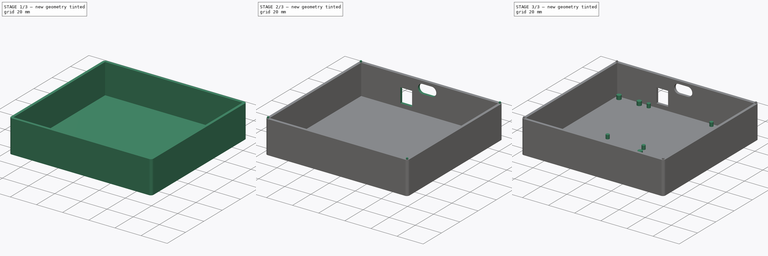
[diagram: build sequence overview — one tinted view per stage of 3, left to right]
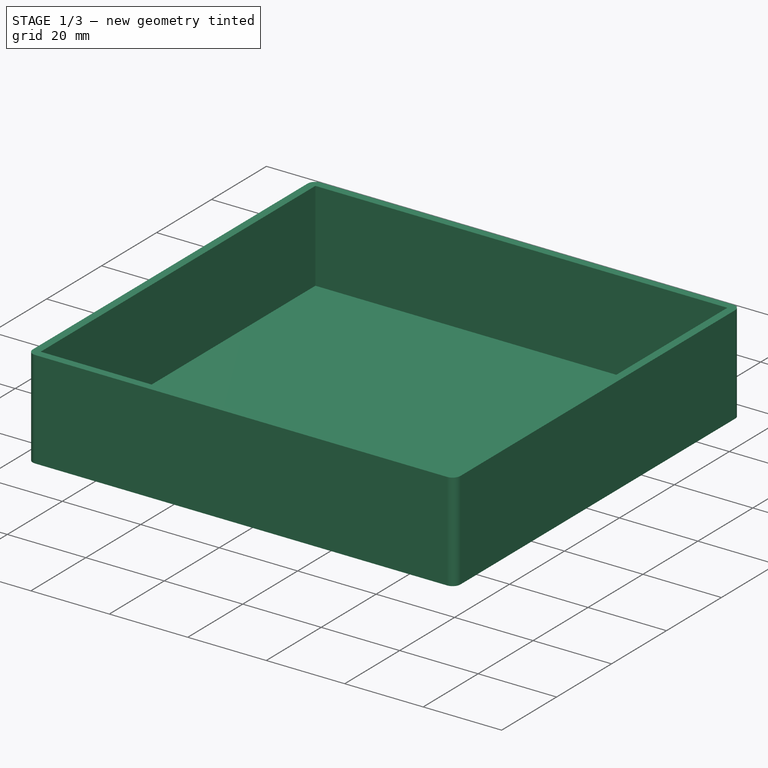
[diagram: stage 1 of 3 — iso view after this stage's code; geometry added in this stage tinted green]
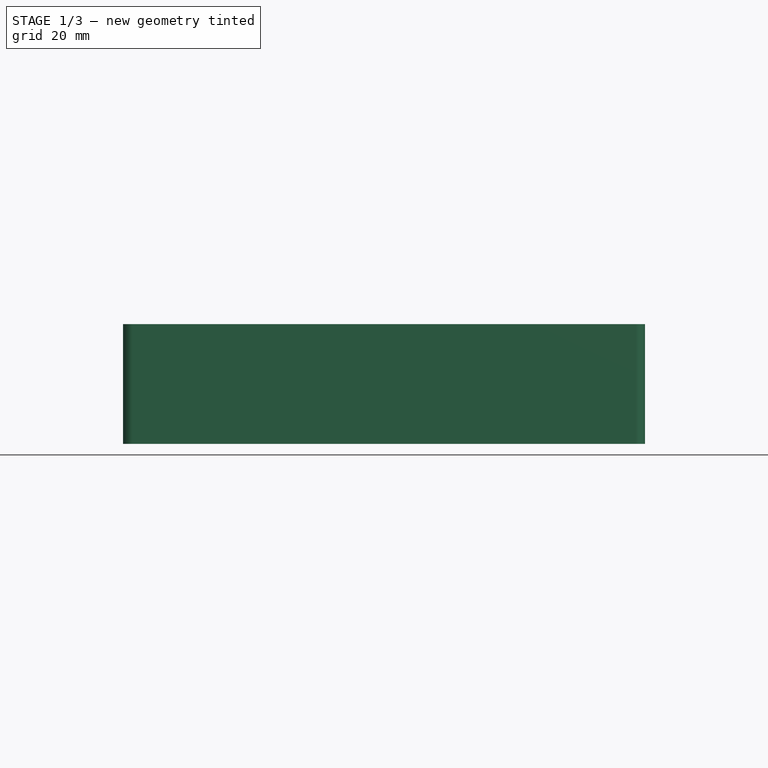
[diagram: stage 1 of 3 — front view after this stage's code; geometry added in this stage tinted green]
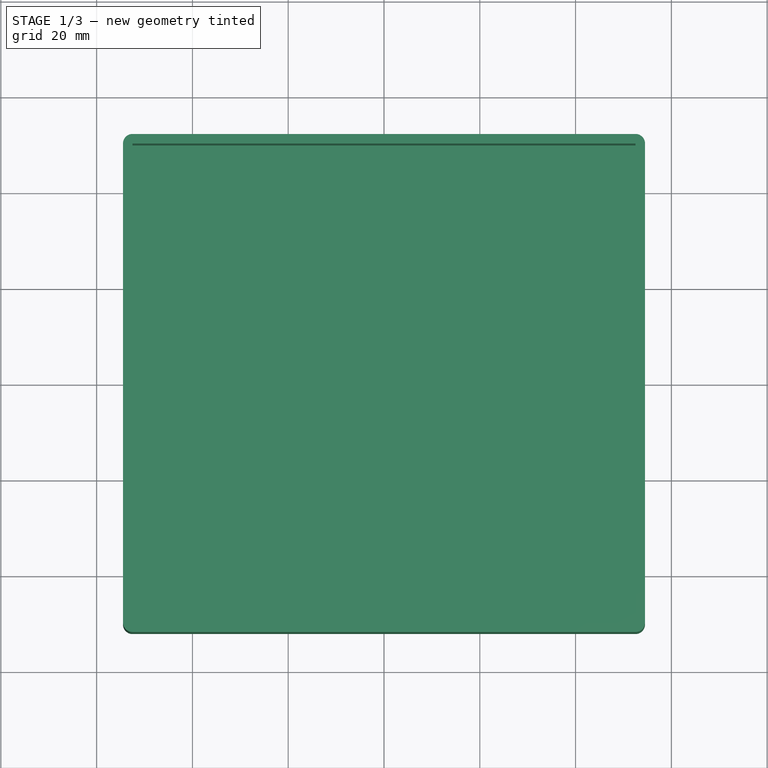
[diagram: stage 1 of 3 — top view after this stage's code; geometry added in this stage tinted green]
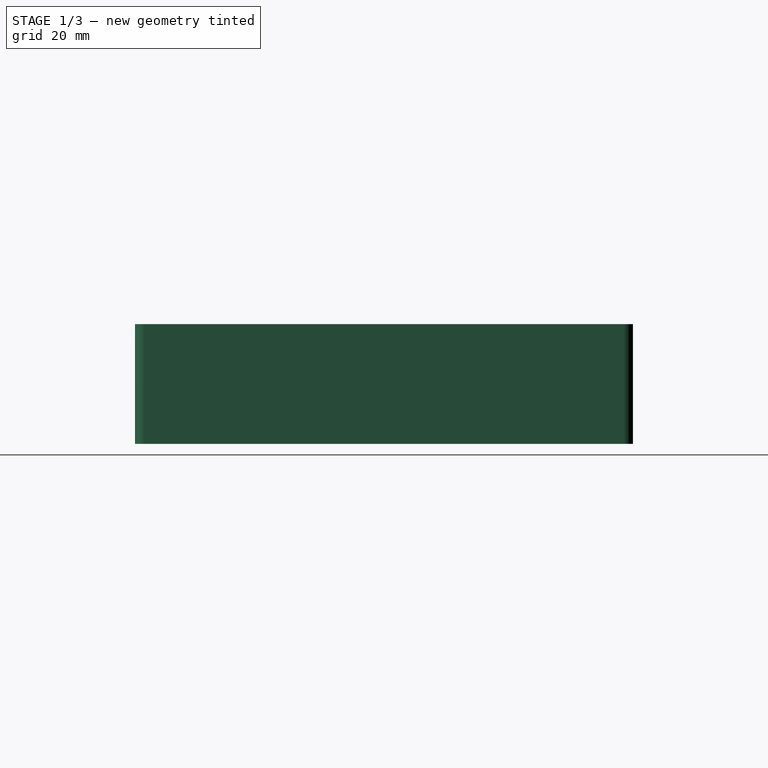
[diagram: stage 1 of 3 — right view after this stage's code; geometry added in this stage tinted green]
FCSTD DOCUMENT  (FreeCAD 2024.1R35694 (Git))
Label: controller
License: All rights reserved
LicenseURL: https://en.wikipedia.org/wiki/All_rights_reserved
objects: App::MeasureDistance×9, Sketcher::SketchObject×7, PartDesign::Pad×5, PartDesign::Pocket×2, PartDesign::Body×1, App::Part×1
note: 22 computed .brp shape members not serialized (recipe doc carries the construction recipe); baked Part::Feature solids carry a one-line shape summary decoded from their .brp

FEATURE [Sketcher::SketchObject] Sketch
  FullyConstrained = true
  MapMode = 5
  Support = -> [XY_Plane001]
  sketch-geometry (14):
    g0: LineSegment StartX=-54.5 StartY=50 StartZ=0 EndX=-54.5 EndY=-50 EndZ=0
    g1: LineSegment StartX=-52.5 StartY=-52 StartZ=0 EndX=52.5 EndY=-52 EndZ=0
    g2: LineSegment StartX=54.5 StartY=-50 StartZ=0 EndX=54.5 EndY=50 EndZ=0
    g3: LineSegment StartX=52.5 StartY=52 StartZ=0 EndX=-52.5 EndY=52 EndZ=0
    g4: ArcOfCircle CenterX=-52.5 CenterY=50 CenterZ=0 NormalX=0 NormalY=0 NormalZ=1 AngleXU=0 Radius=2 StartAngle=1.5708 EndAngle=3.14159
    g5: ArcOfCircle CenterX=-52.5 CenterY=-50 CenterZ=0 NormalX=0 NormalY=0 NormalZ=1 AngleXU=0 Radius=2 StartAngle=3.14159 EndAngle=4.71239
    g6: ArcOfCircle CenterX=52.5 CenterY=-50 CenterZ=0 NormalX=0 NormalY=0 NormalZ=1 AngleXU=0 Radius=2 StartAngle=4.71239 EndAngle=6.28319
    g7: ArcOfCircle CenterX=52.5 CenterY=50 CenterZ=0 NormalX=0 NormalY=0 NormalZ=1 AngleXU=0 Radius=2 StartAngle=9e-16 EndAngle=1.5708
    g8: GeomPoint X=-54.5 Y=52 Z=0
    g9: GeomPoint X=54.5 Y=-52 Z=0
    g10: LineSegment StartX=-52.5 StartY=50 StartZ=0 EndX=-52.5 EndY=-50 EndZ=0
    g11: LineSegment StartX=-52.5 StartY=-50 StartZ=0 EndX=52.5 EndY=-50 EndZ=0
    g12: LineSegment StartX=52.5 StartY=-50 StartZ=0 EndX=52.5 EndY=50 EndZ=0
    g13: LineSegment StartX=52.5 StartY=50 StartZ=0 EndX=-52.5 EndY=50 EndZ=0
  constraints (34):
    c: Tangent(g0,g4) = -1.5708
    c: Tangent(g0,g5) = -1.5708
    c: Tangent(g1,g5) = -1.5708
    c: Tangent(g1,g6) = -1.5708
    c: Tangent(g2,g6) = -1.5708
    c: Tangent(g2,g7) = -1.5708
    c: Tangent(g3,g7) = -1.5708
    c: Tangent(g3,g4) = -1.5708
    c: Vertical(g0)
    c: Vertical(g2)
    c: Horizontal(g1)
    c: Horizontal(g3)
    c: Equal(g4,g5)
    c: Equal(g5,g6)
    c: Equal(g6,g7)
    c: PointOnObject(g8,g0)
    c: PointOnObject(g8,g3)
    c: PointOnObject(g9,g1)
    c: PointOnObject(g9,g2)
    c: Distance(g0,g2) = 109
    c: Distance(g1,g3) = 104
    c: Radius(g5) = 2
    c: Symmetric(g8,g9,g-1)
    c: Coincident(g10,g11)
    c: Coincident(g11,g12)
    c: Coincident(g12,g13)
    c: Coincident(g13,g10)
    c: Vertical(g10)
    c: Vertical(g12)
    c: Horizontal(g11)
    c: Horizontal(g13)
    c: Distance(g10,g12) = 105
    c: Distance(g11,g13) = 100
    c: Symmetric(g10,g11,g-1)
FEATURE [Sketcher::SketchObject] Sketch001
  FullyConstrained = true
  MapMode = 5
  Support = -> [XY_Plane001]
  sketch-geometry (10):
    g0: LineSegment StartX=-54.5 StartY=47 StartZ=0 EndX=-54.5 EndY=-47 EndZ=0
    g1: LineSegment StartX=-49.5 StartY=-52 StartZ=0 EndX=49.5 EndY=-52 EndZ=0
    g2: LineSegment StartX=54.5 StartY=-47 StartZ=0 EndX=54.5 EndY=47 EndZ=0
    g3: LineSegment StartX=49.5 StartY=52 StartZ=0 EndX=-49.5 EndY=52 EndZ=0
    g4: ArcOfCircle CenterX=-49.5 CenterY=47 CenterZ=0 NormalX=0 NormalY=0 NormalZ=1 AngleXU=0 Radius=5 StartAngle=1.5708 EndAngle=3.14159
    g5: ArcOfCircle CenterX=-49.5 CenterY=-47 CenterZ=0 NormalX=0 NormalY=0 NormalZ=1 AngleXU=0 Radius=5 StartAngle=3.14159 EndAngle=4.71239
    g6: ArcOfCircle CenterX=49.5 CenterY=-47 CenterZ=0 NormalX=0 NormalY=0 NormalZ=1 AngleXU=0 Radius=5 StartAngle=4.71239 EndAngle=6.28319
    g7: ArcOfCircle CenterX=49.5 CenterY=47 CenterZ=0 NormalX=0 NormalY=0 NormalZ=1 AngleXU=0 Radius=5 StartAngle=-4.4e-15 EndAngle=1.5708
    g8: GeomPoint X=-54.5 Y=52 Z=0
    g9: GeomPoint X=54.5 Y=-52 Z=0
  constraints (23):
    c: Tangent(g0,g4) = -1.5708
    c: Tangent(g0,g5) = -1.5708
    c: Tangent(g1,g5) = -1.5708
    c: Tangent(g1,g6) = -1.5708
    c: Tangent(g2,g6) = -1.5708
    c: Tangent(g2,g7) = -1.5708
    c: Tangent(g3,g7) = -1.5708
    c: Tangent(g3,g4) = -1.5708
    c: Vertical(g0)
    c: Vertical(g2)
    c: Horizontal(g1)
    c: Horizontal(g3)
    c: Equal(g4,g5)
    c: Equal(g5,g6)
    c: Equal(g6,g7)
    c: PointOnObject(g8,g0)
    c: PointOnObject(g8,g3)
    c: PointOnObject(g9,g1)
    c: PointOnObject(g9,g2)
    c: Distance(g0,g2) = 109
    c: Distance(g1,g3) = 104
    c: Radius(g5) = 5
    c: Symmetric(g8,g9,g-1)
FEATURE [PartDesign::Pad] Pad
  Direction = (0,0,1)
  Length = 25
  Length2 = 10
  Profile = -> Sketch
  ReferenceAxis = -> Sketch [N_Axis]
  Refine = true
  Type = 0
FEATURE [PartDesign::Pad] Pad001
  BaseFeature = -> Pad
  Direction = (0,0,1)
  Length = 2
  Length2 = 10
  Profile = -> Sketch001
  ReferenceAxis = -> Sketch001 [N_Axis]
  Refine = true
  Type = 0
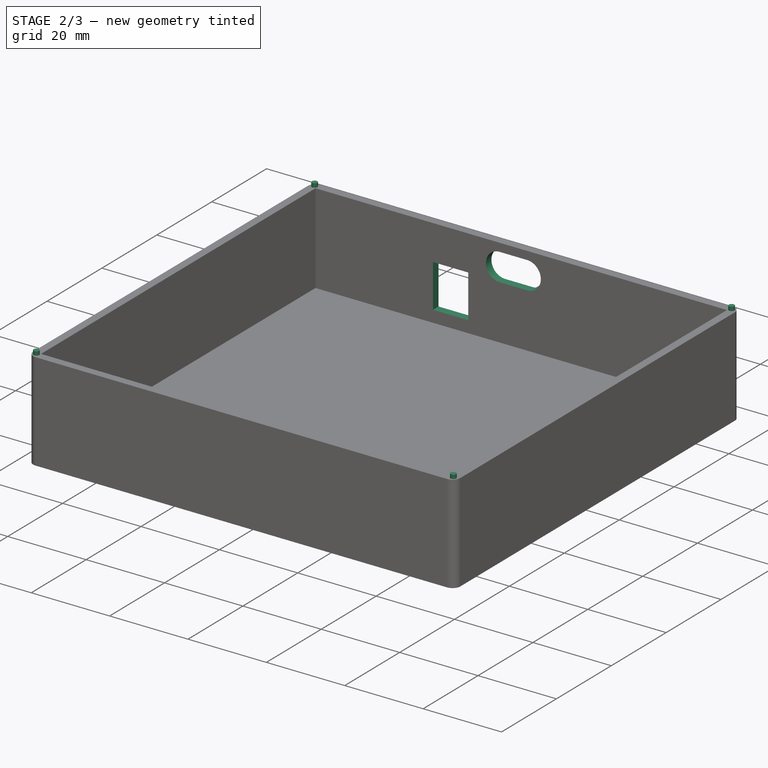
[diagram: stage 2 of 3 — iso view after this stage's code; geometry added in this stage tinted green]
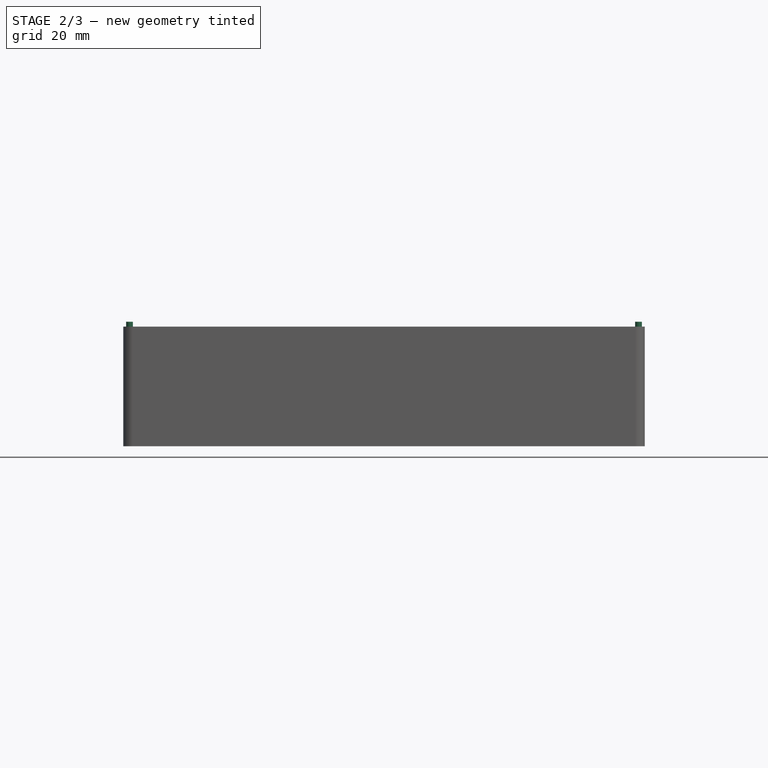
[diagram: stage 2 of 3 — front view after this stage's code; geometry added in this stage tinted green]
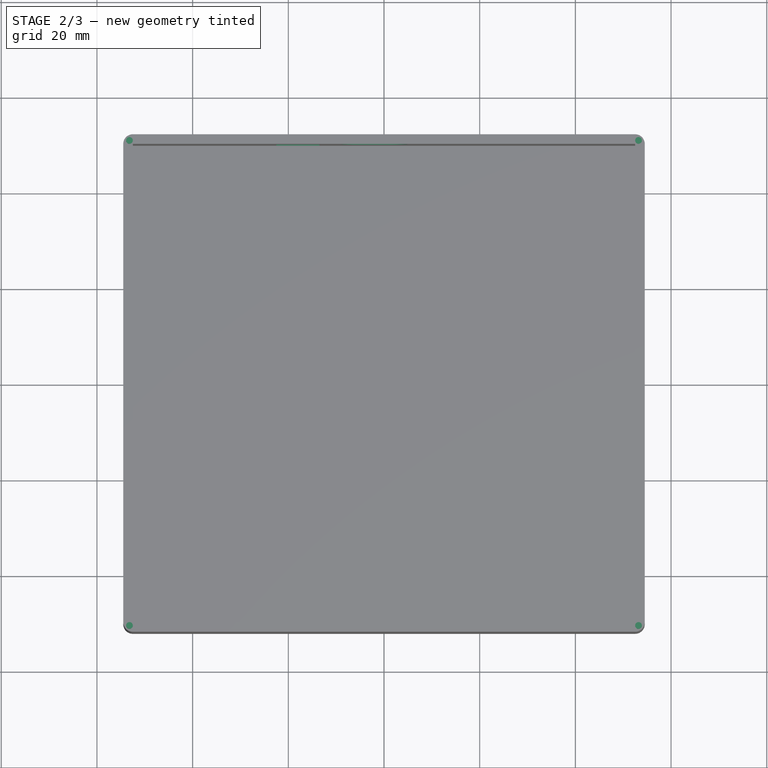
[diagram: stage 2 of 3 — top view after this stage's code; geometry added in this stage tinted green]
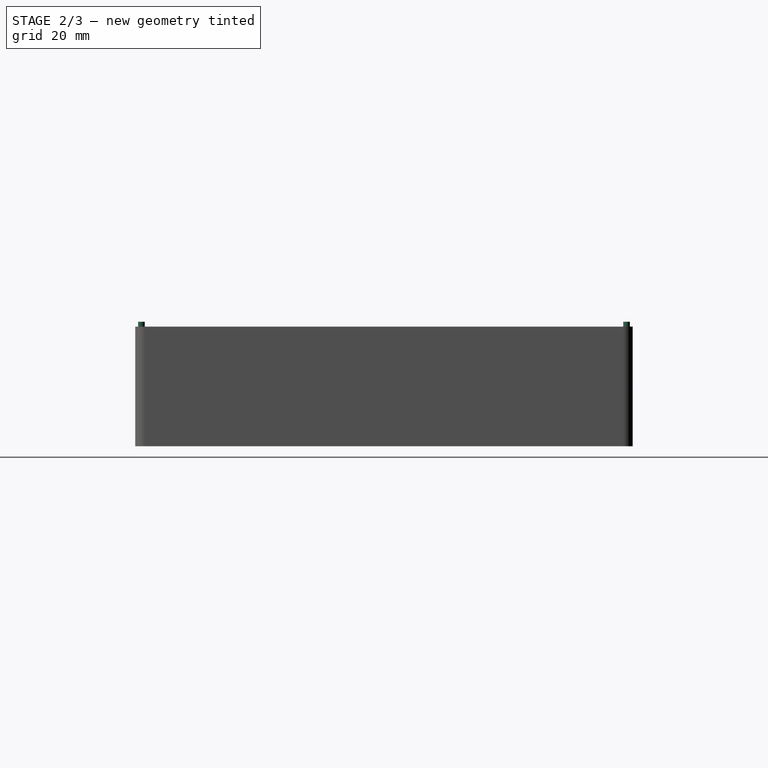
[diagram: stage 2 of 3 — right view after this stage's code; geometry added in this stage tinted green]
FEATURE [Sketcher::SketchObject] Sketch003
  FullyConstrained = true
  MapMode = 5
  Placement = pos=(0,52,0) rot=(0,0.707107,0.707107;3.14159rad)
  Support = -> [Pad001]
  sketch-geometry (5):
    g0: LineSegment StartX=22.5002 StartY=5 StartZ=0 EndX=22.5002 EndY=16 EndZ=0
    g1: LineSegment StartX=22.5002 StartY=16 StartZ=0 EndX=13.5002 EndY=16 EndZ=0
    g2: LineSegment StartX=13.5002 StartY=16 StartZ=0 EndX=13.5002 EndY=5 EndZ=0
    g3: LineSegment StartX=13.5002 StartY=5 StartZ=0 EndX=22.5002 EndY=5 EndZ=0
    g4: GeomPoint X=52.5002 Y=0 Z=0
  constraints (14):
    c: Coincident(g0,g1)
    c: Coincident(g1,g2)
    c: Coincident(g2,g3)
    c: Coincident(g3,g0)
    c: Vertical(g0)
    c: Vertical(g2)
    c: Horizontal(g1)
    c: Horizontal(g3)
    c: Distance(g0,g2) = 9
    c: Distance(g1,g3) = 11
    c: PointOnObject(g4,g-1)
    c: DistanceX(g0,g4) = 30
    c: DistanceY(g4,g0) = 5
    c: Block(g0)
FEATURE [PartDesign::Pocket] Pocket
  BaseFeature = -> Pad001
  Direction = (0,-1,2e-16)
  Length = 5
  Length2 = 5
  Profile = -> Sketch003
  ReferenceAxis = -> Sketch003 [N_Axis]
  Refine = true
  Type = 0
FEATURE [Sketcher::SketchObject] Sketch004
  FullyConstrained = true
  MapMode = 5
  Placement = pos=(0,52,0) rot=(0,0.707107,0.707107;3.14159rad)
  Support = -> [Pocket]
  sketch-geometry (5):
    g0: GeomPoint X=13.5 Y=16 Z=0
    g1: ArcOfCircle CenterX=5.5 CenterY=19.4 CenterZ=0 NormalX=0 NormalY=0 NormalZ=1 AngleXU=0 Radius=3.5 StartAngle=4.71239 EndAngle=7.85398
    g2: ArcOfCircle CenterX=-1.5 CenterY=19.4 CenterZ=0 NormalX=0 NormalY=0 NormalZ=1 AngleXU=0 Radius=3.5 StartAngle=1.5708 EndAngle=4.71239
    g3: LineSegment StartX=5.5 StartY=15.9 StartZ=0 EndX=-1.5 EndY=15.9 EndZ=0
    g4: LineSegment StartX=5.5 StartY=22.9 StartZ=0 EndX=-1.5 EndY=22.9 EndZ=0
  constraints (11):
    c: Tangent(g1,g3) = 1.5708
    c: Tangent(g1,g4) = -1.5708
    c: Tangent(g2,g3) = 1.5708
    c: Tangent(g2,g4) = -1.5708
    c: Equal(g1,g2)
    c: Horizontal(g4)
    c: Distance(g1,g2) = 7
    c: Radius(g1) = 3.5
    c: DistanceY(g0,g1) = -0.1
    c: DistanceX(g1,g0) = 8
    c: Block(g3)
FEATURE [PartDesign::Pocket] Pocket001
  BaseFeature = -> Pocket
  Direction = (0,-1,2e-16)
  Length = 2
  Length2 = 5
  Profile = -> Sketch004
  ReferenceAxis = -> Sketch004 [N_Axis]
  Refine = true
  Type = 0
FEATURE [App::MeasureDistance] Distance001  label="Distance: 30,025 mm"
  Distance = 30.0247
  P1 = (-22.5002,52,10.0437)
  P2 = (-52.5,52,8.82033)
FEATURE [Sketcher::SketchObject] Sketch006
  FullyConstrained = true
  MapMode = 5
  Placement = pos=(0,0,2) rot=(0,0,1;0rad)
  Support = -> [Pocket001]
FEATURE [Sketcher::SketchObject] Sketch005
  FullyConstrained = true
  MapMode = 5
  Placement = pos=(0,0,2) rot=(0,0,1;0rad)
  Support = -> [Pocket001]
  sketch-geometry (12):
    g0: Circle CenterX=-26.5 CenterY=47.4 CenterZ=0 NormalX=0 NormalY=0 NormalZ=1 AngleXU=0 Radius=1.3
    g1: Circle CenterX=-33.5 CenterY=47 CenterZ=0 NormalX=0 NormalY=0 NormalZ=1 AngleXU=0 Radius=1.65
    g2: Circle CenterX=-49 CenterY=47 CenterZ=0 NormalX=0 NormalY=0 NormalZ=1 AngleXU=0 Radius=1.65
    g3: Circle CenterX=-49 CenterY=-38 CenterZ=0 NormalX=0 NormalY=0 NormalZ=1 AngleXU=0 Radius=1.65
    g4: Circle CenterX=-33.5 CenterY=-38 CenterZ=0 NormalX=0 NormalY=0 NormalZ=1 AngleXU=0 Radius=1.65
    g5: Circle CenterX=21.5 CenterY=47.4 CenterZ=0 NormalX=0 NormalY=0 NormalZ=1 AngleXU=0 Radius=1.3
    g6: Circle CenterX=-21.2 CenterY=-5.1 CenterZ=0 NormalX=0 NormalY=0 NormalZ=1 AngleXU=0 Radius=1.3
    g7: Circle CenterX=6.3 CenterY=-5.1 CenterZ=0 NormalX=0 NormalY=0 NormalZ=1 AngleXU=0 Radius=1.3
    g8: Circle CenterX=9.3 CenterY=-13.1 CenterZ=0 NormalX=0 NormalY=0 NormalZ=1 AngleXU=0 Radius=1.65
    g9: Circle CenterX=35.8 CenterY=-13.1 CenterZ=0 NormalX=0 NormalY=0 NormalZ=1 AngleXU=0 Radius=1.65
    g10: Circle CenterX=9.3 CenterY=-33.1 CenterZ=0 NormalX=0 NormalY=0 NormalZ=1 AngleXU=0 Radius=1.65
    g11: Circle CenterX=35.8 CenterY=-33.1 CenterZ=0 NormalX=0 NormalY=0 NormalZ=1 AngleXU=0 Radius=1.65
  constraints (35):
    c: Radius(g0) = 1.3
    c: Radius(g1) = 1.65
    c: DistanceX(g1,g0) = 7
    c: DistanceY(g1,g0) = 0.4
    c: Radius(g2) = 1.65
    c: DistanceY(g2,g1) = 0
    c: DistanceX(g2,g1) = 15.5
    c: Block(g0)
    c: Radius(g3) = 1.65
    c: Radius(g4) = 1.65
    c: DistanceX(g3,g4) = 15.5
    c: DistanceY(g3,g2) = 85
    c: DistanceX(g2,g3) = 0
    c: DistanceY(g3,g4) = 0
    c: Radius(g5) = 1.3
    c: DistanceX(g0,g5) = 48
    c: DistanceY(g0,g5) = 0
    c: Radius(g6) = 1.3
    c: Radius(g7) = 1.3
    c: DistanceY(g6,g0) = 52.5
    c: DistanceX(g0,g6) = 5.3
    c: DistanceX(g6,g7) = 27.5
    c: DistanceY(g7,g6) = 0
    c: Radius(g8) = 1.65
    c: Radius(g9) = 1.65
    c: Radius(g10) = 1.65
    c: Radius(g11) = 1.65
    c: DistanceX(g8,g7) = -3
    c: DistanceY(g8,g7) = 8
    c: DistanceY(g10,g8) = 20
    c: DistanceX(g10,g8) = 0
    c: DistanceX(g8,g9) = 26.5
    c: DistanceY(g9,g8) = 0
    c: DistanceY(g11,g9) = 20
    c: DistanceX(g9,g11) = 0
FEATURE [App::MeasureDistance] Distance  label="Distance: 25,141 mm"
  Distance = 25.1414
  P1 = (26.0046,52,25)
  P2 = (28.777,52,0.0119046)
FEATURE [App::MeasureDistance] Distance002  label="Distance: 0,600 mm"
  Distance = 0.600068
  P1 = (-1.35408,50,24.4)
  P2 = (-1.34506,50,25)
FEATURE [Sketcher::SketchObject] Sketch007
  FullyConstrained = true
  MapMode = 5
  Placement = pos=(0,0,25) rot=(0,0,1;0rad)
  sketch-geometry (8):
    g0: Circle CenterX=53.2 CenterY=50.7 CenterZ=0 NormalX=0 NormalY=0 NormalZ=1 AngleXU=0 Radius=0.7
    g1: GeomPoint X=52.5 Y=50 Z=0
    g2: GeomPoint X=-52.5 Y=50 Z=0
    g3: GeomPoint X=-52.5 Y=-50 Z=0
    g4: GeomPoint X=52.5 Y=-50 Z=0
    g5: Circle CenterX=-53.2 CenterY=50.7 CenterZ=0 NormalX=0 NormalY=0 NormalZ=1 AngleXU=0 Radius=0.7
    g6: Circle CenterX=-53.2 CenterY=-50.7 CenterZ=0 NormalX=0 NormalY=0 NormalZ=1 AngleXU=0 Radius=0.7
    g7: Circle CenterX=53.2 CenterY=-50.7 CenterZ=0 NormalX=0 NormalY=0 NormalZ=1 AngleXU=0 Radius=0.7
  constraints (16):
    c: Radius(g0) = 0.7
    c: DistanceY(g1,g0) = 0.7
    c: DistanceX(g1,g0) = 0.7
    c: Block(g0)
    c: Radius(g5) = 0.7
    c: DistanceX(g5,g2) = 0.7
    c: DistanceY(g2,g5) = 0.7
    c: Block(g5)
    c: Radius(g6) = 0.7
    c: DistanceX(g6,g3) = 0.7
    c: DistanceY(g6,g3) = 0.7
    c: Block(g6)
    c: Radius(g7) = 0.7
    c: DistanceY(g7,g4) = 0.7
    c: DistanceX(g4,g7) = 0.7
    c: Block(g7)
FEATURE [PartDesign::Pad] Pad006
  BaseFeature = -> Pocket001
  Direction = (0,0,1)
  Length = 1
  Length2 = 10
  Profile = -> Sketch007
  ReferenceAxis = -> Sketch007 [N_Axis]
  Refine = true
  Type = 0
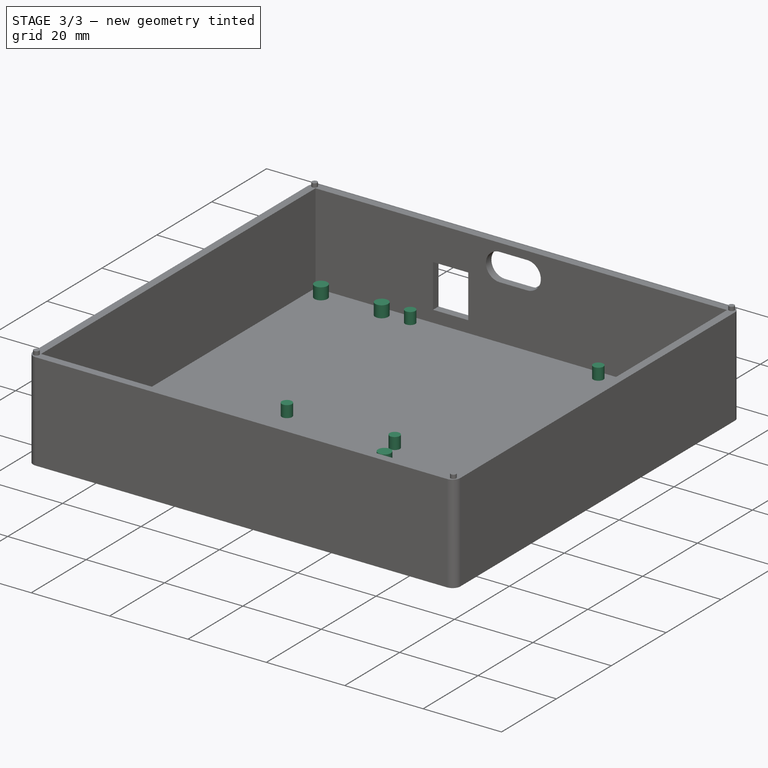
[diagram: stage 3 of 3 — iso view after this stage's code; geometry added in this stage tinted green]
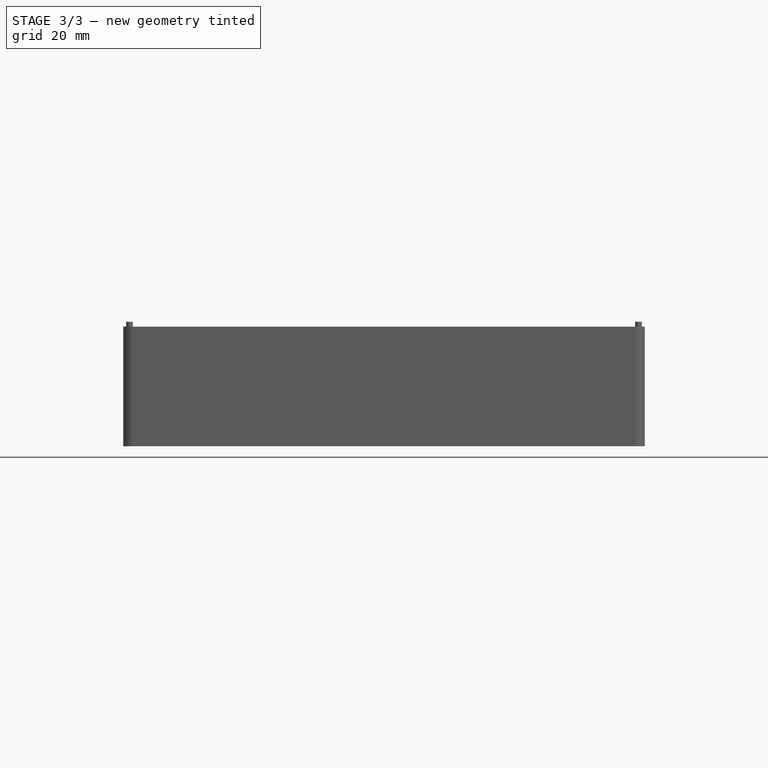
[diagram: stage 3 of 3 — front view after this stage's code; geometry added in this stage tinted green]
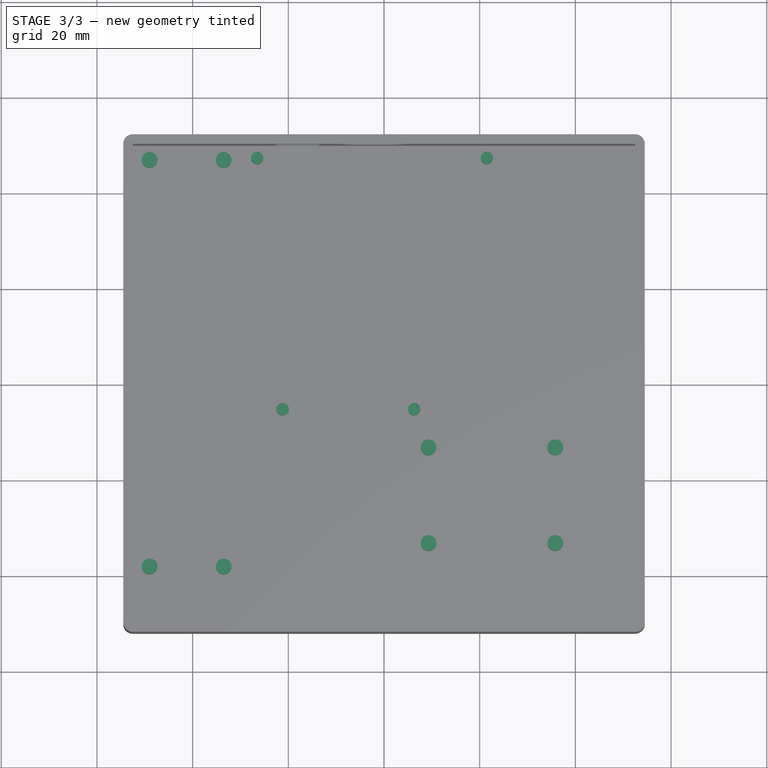
[diagram: stage 3 of 3 — top view after this stage's code; geometry added in this stage tinted green]
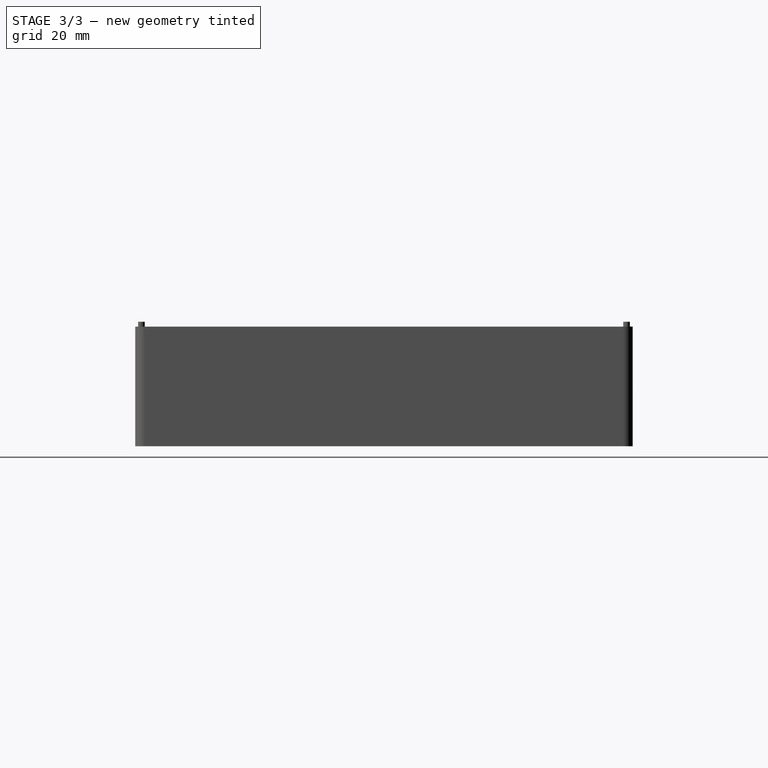
[diagram: stage 3 of 3 — right view after this stage's code; geometry added in this stage tinted green]
FEATURE [PartDesign::Pad] Pad007
  BaseFeature = -> Pad006
  Direction = (0,0,1)
  Length = 2
  Length2 = 10
  Profile = -> Sketch001
  ReferenceAxis = -> Sketch001 [N_Axis]
  Refine = true
  Type = 0
FEATURE [App::MeasureDistance] Distance003  label="Distance: 1,514 mm"
  Distance = 1.51358
  P1 = (-16.4302,50,6.5)
  P2 = (-16.6318,49.9838,5)
FEATURE [App::MeasureDistance] Distance004  label="Distance: 6,551 mm"
  Distance = 6.5513
  P1 = (-19.9227,52,6.5)
  P2 = (-20.7409,52,0)
FEATURE [PartDesign::Pad] Pad008
  BaseFeature = -> Pad007
  Direction = (0,0,1)
  Length = 3
  Length2 = 10
  Profile = -> Sketch005
  ReferenceAxis = -> Sketch005 [N_Axis]
  Refine = true
  Type = 0
FEATURE [PartDesign::Body] Body  label="Тело"
  Group = -> [Sketch,Sketch001,Pad,Pad001,Sketch003,Pocket,Sketch004,Pocket001,Sketch005,Sketch006,Sketch007,Pad006,Pad007,Pad008]
  Origin = -> Origin001
  Tip = -> Pad008
FEATURE [App::Part] Part
  Group = -> [Body]
  Origin = -> Origin
FEATURE [App::MeasureDistance] Distance005  label="Distance: 84,457 mm"
  Distance = 84.4573
  P1 = (-48.8048,46.4341,5)
  P2 = (-48.8084,-38.0233,5)
FEATURE [App::MeasureDistance] Distance006  label="Distance: 15,502 mm"
  Distance = 15.5017
  P1 = (-48.8679,47.168,5)
  P2 = (-33.3664,47.0896,5)
FEATURE [App::MeasureDistance] Distance007  label="Distance: 21,516 mm"
  Distance = 21.5164
  P1 = (9.15953,-13.1545,5)
  P2 = (30.6758,-13.2366,5)
FEATURE [App::MeasureDistance] Distance008  label="Distance: 20,404 mm"
  Distance = 20.404
  P1 = (9.24049,-12.8659,5)
  P2 = (9.3969,-33.2694,5)
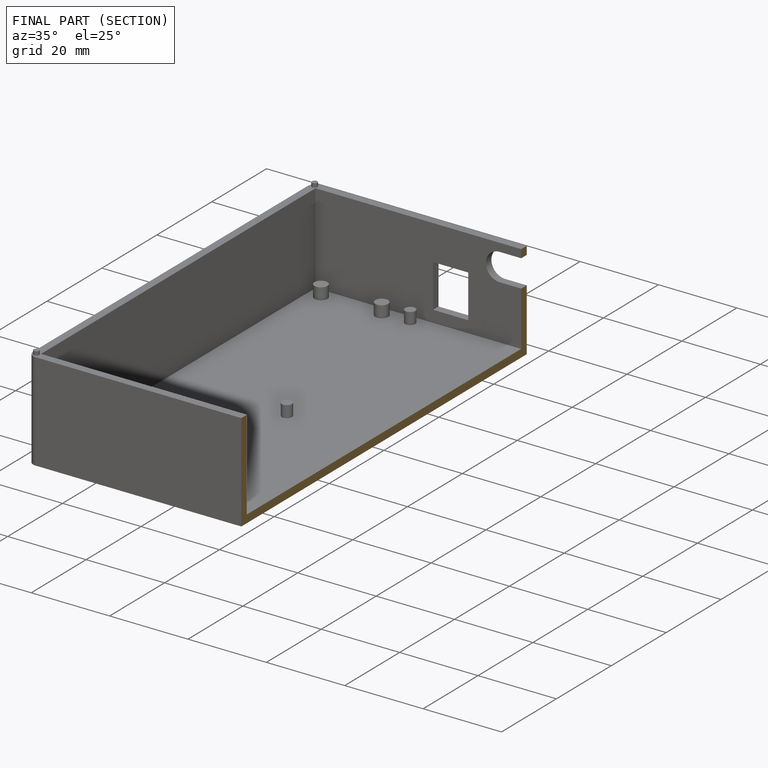
[diagram: finished part — half-section view (interior)]
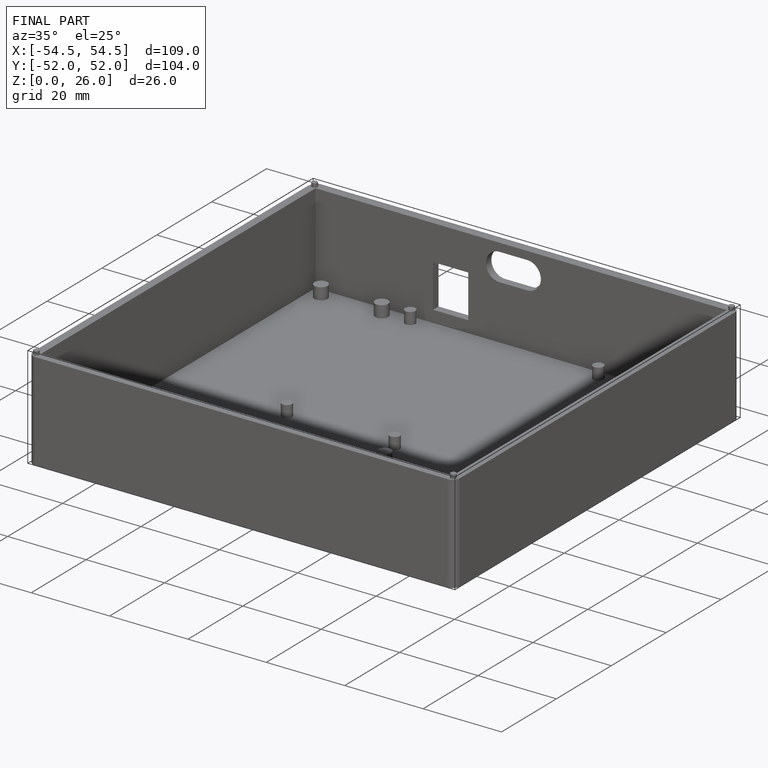
[diagram: finished part — iso view with bounding-box wireframe]
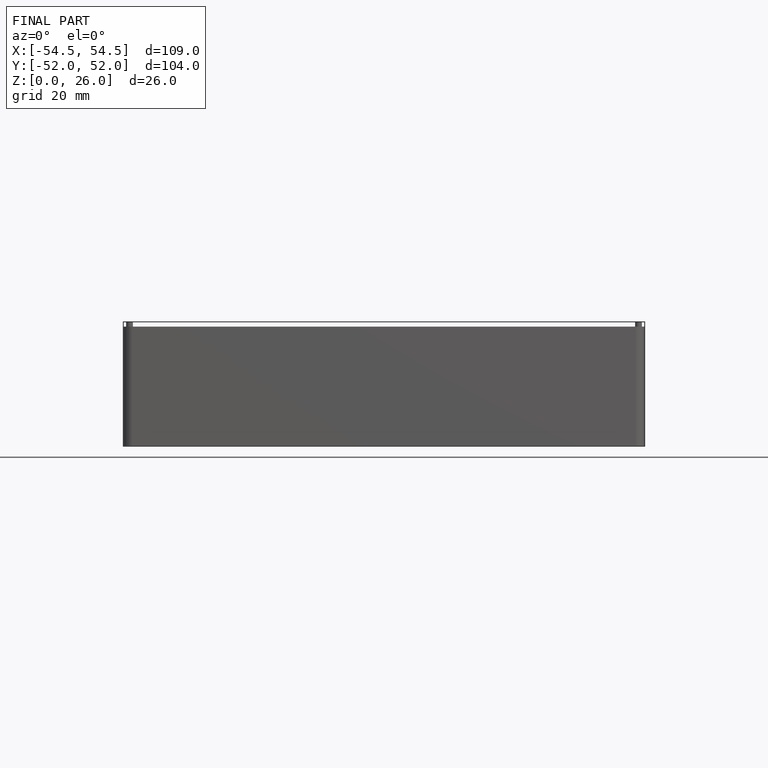
[diagram: finished part — front view with bounding-box wireframe]
